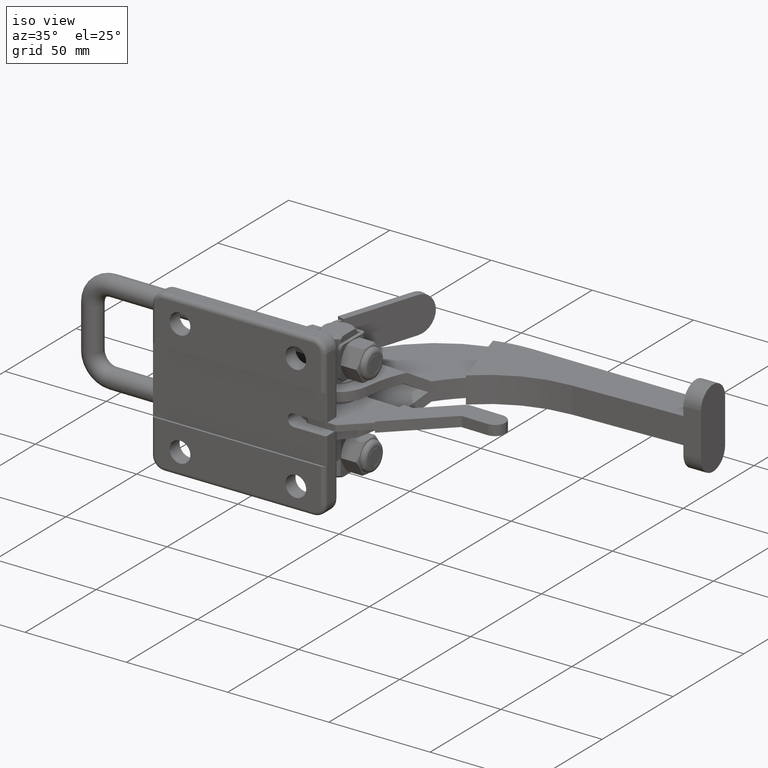
[diagram: clean part render]
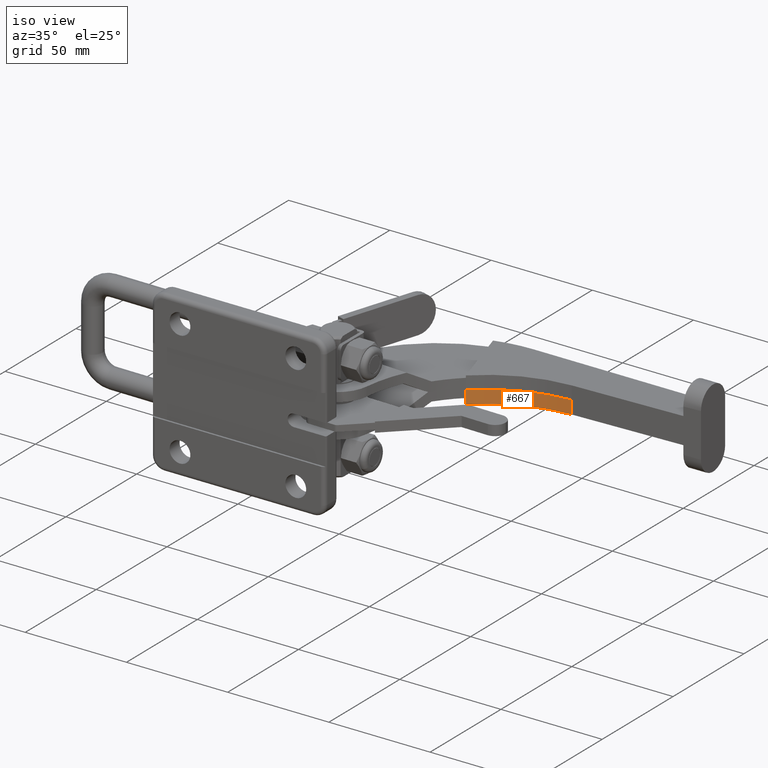
[diagram: same view with one face highlighted and labeled with its STEP entity id]
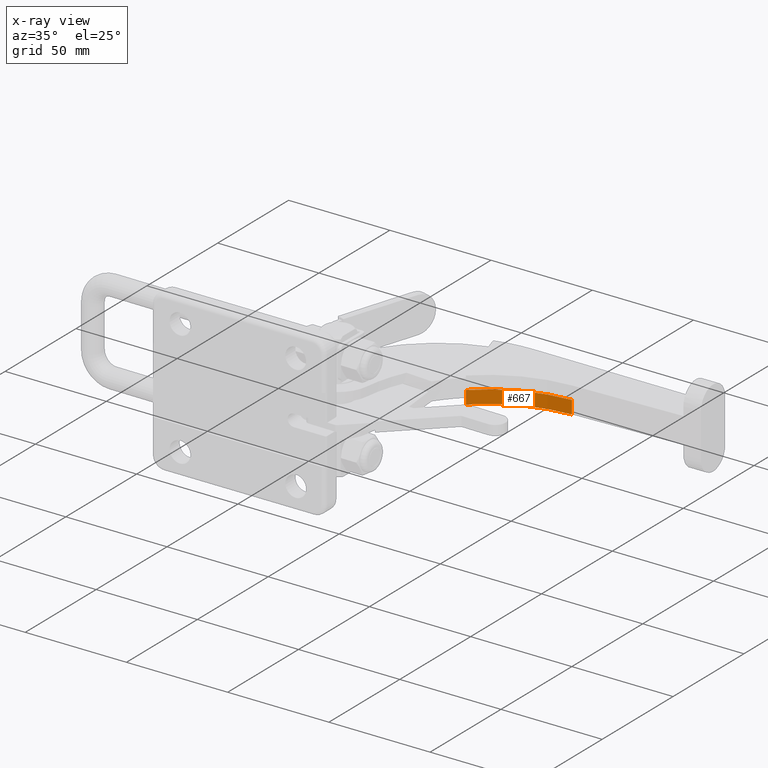
[diagram: x-ray of the same camera — body ghosted, the highlighted face saturated]
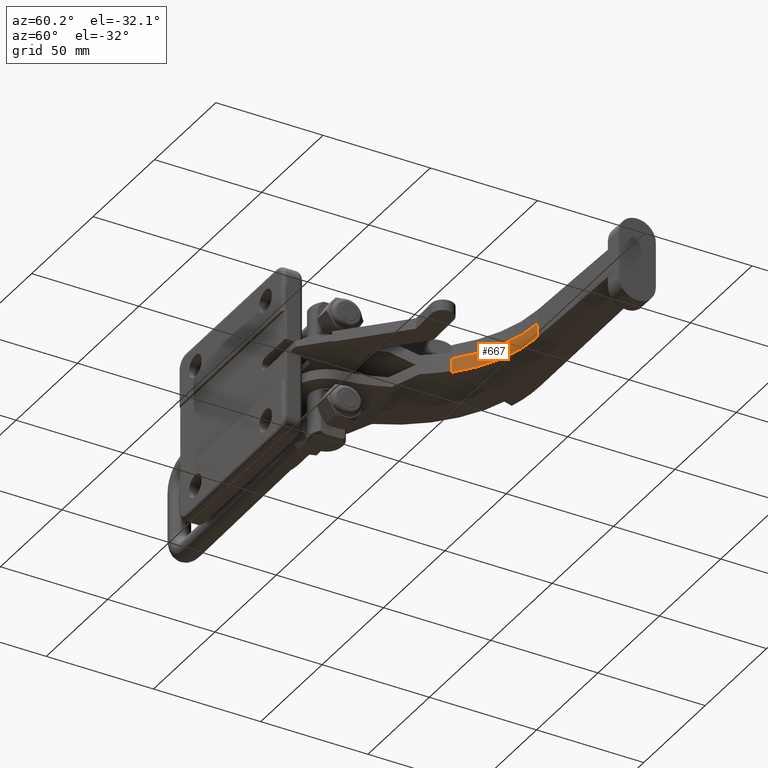
[diagram: same view with one face highlighted and labeled with its STEP entity id]
A machine part, iso view. The second image highlights one B-rep face of the part: STEP entity #667.
The next image is the same camera in x-ray: the body ghosted, the highlighted face saturated — about 0% of this face is hidden behind the body in this view.
A second angle (auxiliary view) of the same face is appended — the face is thin or edge-on in the first view.
In plain terms, the highlighted cylindrical surface (partial cylindrical patch) has radius 63.003 mm, axis along (-0, -0, -1).
Its self-contained STEP definition (entity closure, byte-faithful):
#59 = ORIENTED_EDGE ( 'NONE', *, *, #7169, .F. ) ;
#257 = DIRECTION ( 'NONE',  ( -5.105470538704967200E-024, -2.366302490814077600E-022, -1.000000000000000000 ) ) ;
#480 = CARTESIAN_POINT ( 'NONE',  ( 110.1169161053549600, 18.58855961654994000, 8.673617379884035500E-016 ) ) ;
#509 = AXIS2_PLACEMENT_3D ( 'NONE', #480, #2090, #3117 ) ;
#667 = ADVANCED_FACE ( 'NONE', ( #5276 ), #5041, .F. ) ;
#963 = EDGE_LOOP ( 'NONE', ( #59, #1976, #10930, #2469 ) ) ;
#996 = VERTEX_POINT ( 'NONE', #5354 ) ;
#1976 = ORIENTED_EDGE ( 'NONE', *, *, #9143, .F. ) ;
#2090 = DIRECTION ( 'NONE',  ( -5.105470538704967200E-024, -2.366302490814077600E-022, -1.000000000000000000 ) ) ;
#2190 = DIRECTION ( 'NONE',  ( -5.105470538704967200E-024, -2.366302490814077600E-022, -1.000000000000000000 ) ) ;
#2469 = ORIENTED_EDGE ( 'NONE', *, *, #8836, .T. ) ;
#3117 = DIRECTION ( 'NONE',  ( 0.9986512579879053300, -0.05191979313493252200, 7.187209005348974700E-024 ) ) ;
#3411 = CIRCLE ( 'NONE', #6502, 63.00299174677288500 ) ;
#4213 = CARTESIAN_POINT ( 'NONE',  ( 110.1169161053549600, 18.58855961654994000, -6.499999999999999100 ) ) ;
#4330 = VERTEX_POINT ( 'NONE', #4411 ) ;
#4411 = CARTESIAN_POINT ( 'NONE',  ( 107.9178422405981900, 81.55316112550318100, 8.673617379884035500E-016 ) ) ;
#4733 = CARTESIAN_POINT ( 'NONE',  ( 110.1169161053549600, 18.58855961654990500, 8.673617379884035500E-016 ) ) ;
#5041 = CYLINDRICAL_SURFACE ( 'NONE', #509, 63.00299174677288500 ) ;
#5142 = DIRECTION ( 'NONE',  ( 0.9986512579879053300, -0.05191979313493252200, 0.0000000000000000000 ) ) ;
#5276 = FACE_OUTER_BOUND ( 'NONE', #963, .T. ) ;
#5354 = CARTESIAN_POINT ( 'NONE',  ( 67.29045889851036600, 64.79755800597882900, 8.673617379884035500E-016 ) ) ;
#5456 = CARTESIAN_POINT ( 'NONE',  ( 107.9178422405981900, 81.55316112550318100, -6.499999999999999100 ) ) ;
#5647 = DIRECTION ( 'NONE',  ( 0.9986512579879052200, -0.05191979313493293200, 7.187208980893881500E-024 ) ) ;
#5731 = CARTESIAN_POINT ( 'NONE',  ( 67.29045889851036600, 64.79755800597882900, 8.673617379884035500E-016 ) ) ;
#6431 = VERTEX_POINT ( 'NONE', #6830 ) ;
#6502 = AXIS2_PLACEMENT_3D ( 'NONE', #4213, #10622, #5142 ) ;
#6758 = VECTOR ( 'NONE', #2190, 1000.000000000000000 ) ;
#6830 = CARTESIAN_POINT ( 'NONE',  ( 67.29045889851036600, 64.79755800597882900, -6.499999999999999100 ) ) ;
#6885 = VERTEX_POINT ( 'NONE', #5456 ) ;
#7086 = EDGE_CURVE ( 'NONE', #996, #6431, #10075, .T. ) ;
#7169 = EDGE_CURVE ( 'NONE', #4330, #6885, #11657, .T. ) ;
#8571 = CARTESIAN_POINT ( 'NONE',  ( 107.9178422405981900, 81.55316112550318100, 8.673617379884035500E-016 ) ) ;
#8836 = EDGE_CURVE ( 'NONE', #6431, #6885, #3411, .T. ) ;
#9143 = EDGE_CURVE ( 'NONE', #996, #4330, #10294, .T. ) ;
#9797 = VECTOR ( 'NONE', #257, 1000.000000000000000 ) ;
#9976 = AXIS2_PLACEMENT_3D ( 'NONE', #4733, #11158, #5647 ) ;
#10075 = LINE ( 'NONE', #5731, #9797 ) ;
#10294 = CIRCLE ( 'NONE', #9976, 63.00299174677289200 ) ;
#10622 = DIRECTION ( 'NONE',  ( -5.105470538704967200E-024, -2.366302490814077600E-022, -1.000000000000000000 ) ) ;
#10930 = ORIENTED_EDGE ( 'NONE', *, *, #7086, .T. ) ;
#11158 = DIRECTION ( 'NONE',  ( -5.105470568443183800E-024, -2.366302491786024300E-022, -1.000000000000000000 ) ) ;
#11657 = LINE ( 'NONE', #8571, #6758 ) ;